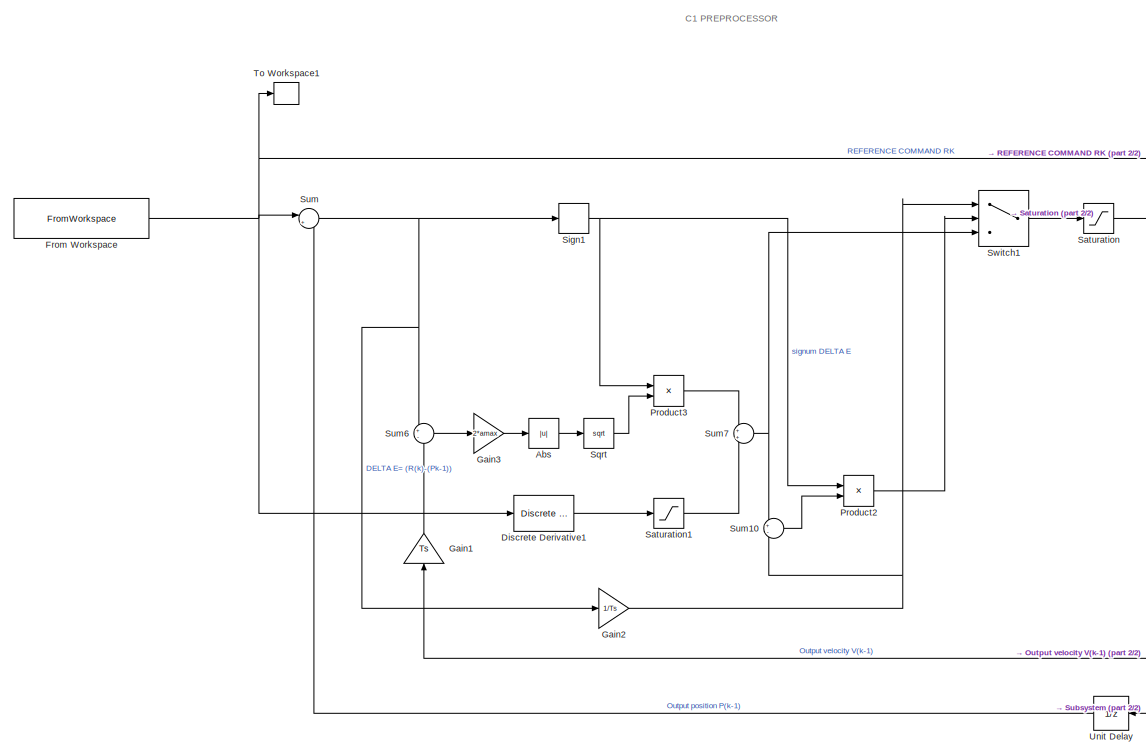
[diagram: root canvas - part 1/2, left side, full height]
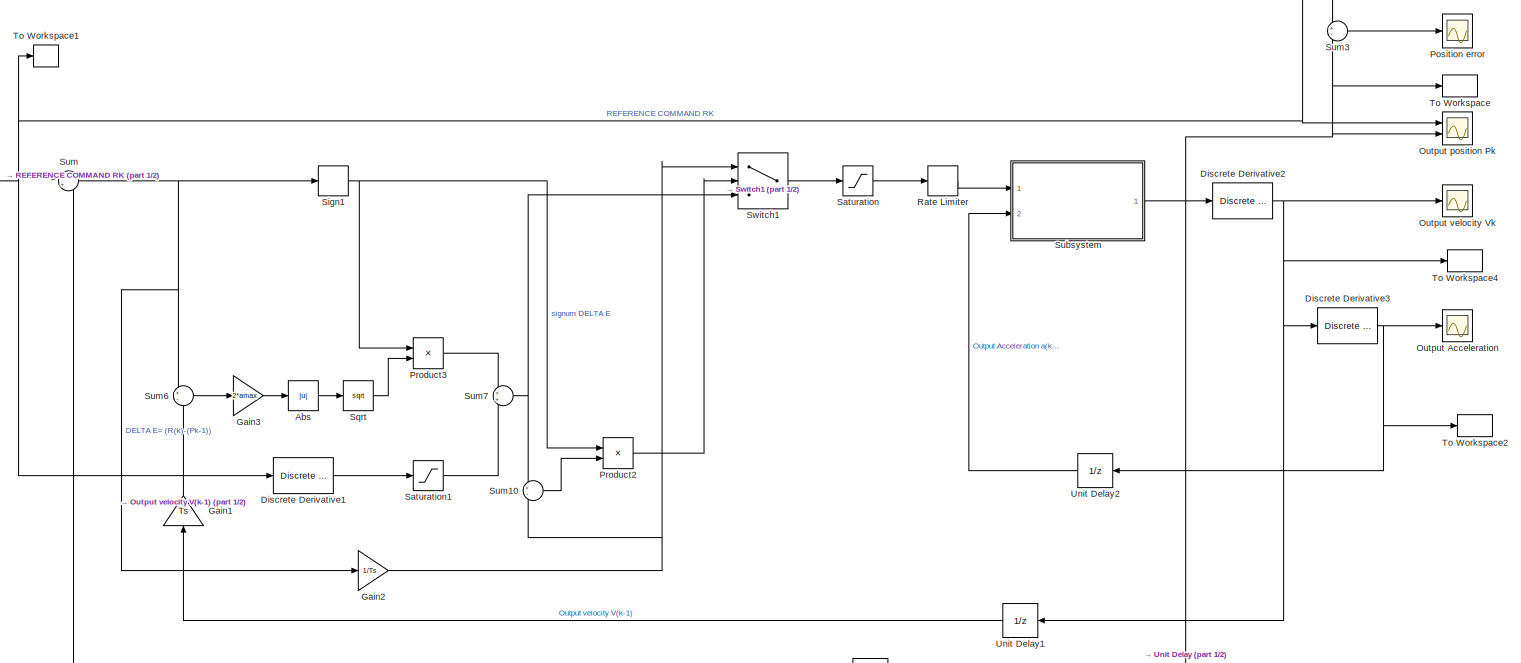
[diagram: root canvas - part 2/2, most of the canvas]
MODEL slx_3050f419aaf1
KIND model
CONFIG AbsTol = auto
CONFIG EnableMultiTasking = off
CONFIG FixedStep = Ts
CONFIG MaxStep = auto
CONFIG MinStep = auto
CONFIG RelTol = 1e-3
CONFIG SampleTimeConstraint = Unconstrained
CONFIG SolverName = FixedStepDiscrete
CONFIG StartTime = 0.0
CONFIG StopTime = 200
WORKSPACE source: mxarray member
WORKSPACE Ts = 0.002
WORKSPACE acoeff = 0.95
WORKSPACE amax = 0.1
WORKSPACE jcoeff = 0.1
WORKSPACE jmax = 1
WORKSPACE pf = 160
WORKSPACE reference_command = [0 0.002 0.004 0.006 0.008 0.01 0.012 0.014 0.016 0.018 0.02 0.022 ... (200002 elements, 100001x2)]
WORKSPACE v = 50
WORKSPACE vmax = 1.5
BLOCK [Abs] Abs
  SaturateOnIntegerOverflow = off
BLOCK [Reference] Discrete Derivative1  REF=simulink/Discrete/Discrete Derivative
  Ports = [1, 1]
  SourceBlock = simulink/Discrete/Discrete Derivative
  SourceProductBaseCode = SL
  SourceType = Discrete Derivative
BLOCK [Reference] Discrete Derivative2  REF=simulink/Discrete/Discrete Derivative
  Ports = [1, 1]
  SourceBlock = simulink/Discrete/Discrete Derivative
  SourceProductBaseCode = SL
  SourceType = Discrete Derivative
BLOCK [Reference] Discrete Derivative3  REF=simulink/Discrete/Discrete Derivative
  Ports = [1, 1]
  SourceBlock = simulink/Discrete/Discrete Derivative
  SourceProductBaseCode = SL
  SourceType = Discrete Derivative
BLOCK [FromWorkspace] From Workspace
  VariableName = reference_command
BLOCK [Gain] Gain1
  Gain = Ts
  NameLocation = right
BLOCK [Gain] Gain2
  Gain = 1/Ts
BLOCK [Gain] Gain3
  Gain = 2*amax
BLOCK [Scope] Output Acceleration
  Floating = off
  NumInputPorts = 1
  Ports = [1]
  ScopeSpecificationString = Simulink.scopes.TimeScopeBlockCfg('CurrentConfiguration', extmgr.ConfigurationSet(extmgr.Configuration('Core','General UI',true),extmgr.Configuration('Core','Source UI',true),extmgr.Configuration('Sources','WiredSimulink',true,'DataLoggingVariableName','ScopeData1'),extmgr.Configuration('Visuals','Time Domain',true,'SerializedDisplays',{struct('MinYLimReal','-0.13125','MaxYLimReal','0.13125','YLab...<+1479ch>
BLOCK [Scope] Output position Pk
  Floating = off
  NumInputPorts = 2
  Ports = [2]
  ScopeSpecificationString = Simulink.scopes.TimeScopeBlockCfg('CurrentConfiguration', extmgr.ConfigurationSet(extmgr.Configuration('Core','General UI',true),extmgr.Configuration('Core','Source UI',true),extmgr.Configuration('Sources','WiredSimulink',true,'DataLoggingMaxPoints','100'),extmgr.Configuration('Visuals','Time Domain',true,'TimeAxisLabels','All','PlotType','Line','SerializedDisplays',{struct('MinYLimReal','-21.0445...<+1779ch>
BLOCK [Scope] Output velocity Vk
  Floating = off
  NumInputPorts = 1
  Ports = [1]
  ScopeSpecificationString = Simulink.scopes.TimeScopeBlockCfg('CurrentConfiguration', extmgr.ConfigurationSet(extmgr.Configuration('Core','General UI',true),extmgr.Configuration('Core','Source UI',true),extmgr.Configuration('Sources','WiredSimulink',true,'DataLoggingVariableName','ScopeData1'),extmgr.Configuration('Visuals','Time Domain',true,'SerializedDisplays',{struct('MinYLimReal','-0.013899','MaxYLimReal','-0.013879','Y...<+1568ch>
BLOCK [Scope] Position error
  Floating = off
  NumInputPorts = 1
  Ports = [1]
  ScopeSpecificationString = Simulink.scopes.TimeScopeBlockCfg('CurrentConfiguration', extmgr.ConfigurationSet(extmgr.Configuration('Core','General UI',true),extmgr.Configuration('Core','Source UI',true),extmgr.Configuration('Sources','WiredSimulink',true,'DataLoggingMaxPoints','100','DataLoggingVariableName','ScopeData1'),extmgr.Configuration('Visuals','Time Domain',true,'TimeAxisLabels','All','PlotType','Line','SerializedDi...<+1782ch>
BLOCK [Product] Product2
  Ports = [2, 1]
BLOCK [Product] Product3
  Ports = [2, 1]
BLOCK [RateLimiter] Rate Limiter
  FallingSlewLimit = -amax
  RisingSlewLimit = amax
  SampleTimeMode = inherited
BLOCK [Saturate] Saturation
  LowerLimit = -vmax
  UpperLimit = vmax
BLOCK [Saturate] Saturation1
  LowerLimit = -vmax
  UpperLimit = vmax
BLOCK [Signum] Sign1
BLOCK [Sqrt] Sqrt
  NameLocation = top
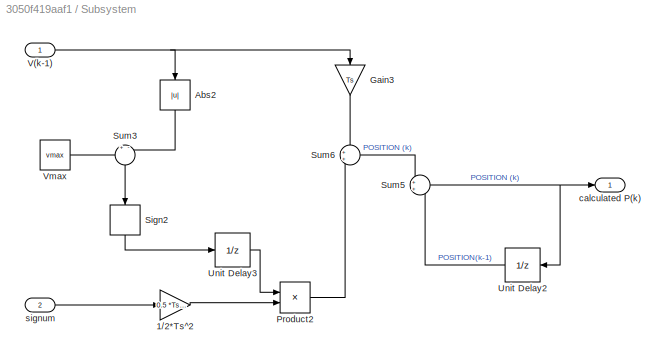
BLOCK [SubSystem] Subsystem
  Ports = [2, 1]
  RequestExecContextInheritance = off
BLOCK [Gain] Subsystem/1//2*Ts^2
  Gain = 0.5 *Ts^2
BLOCK [Abs] Subsystem/Abs2
  NameLocation = right
  SaturateOnIntegerOverflow = off
BLOCK [Gain] Subsystem/Gain3
  Gain = Ts
  NameLocation = left
BLOCK [Product] Subsystem/Product2
  Ports = [2, 1]
BLOCK [Signum] Subsystem/Sign2
  NameLocation = left
BLOCK [Sum] Subsystem/Sum3
  Inputs = +-
  NameLocation = left
  Ports = [2, 1]
BLOCK [Sum] Subsystem/Sum5
  Ports = [2, 1]
BLOCK [Sum] Subsystem/Sum6
  Ports = [2, 1]
BLOCK [UnitDelay] Subsystem/Unit Delay2
  HasFrameUpgradeWarning = on
  SampleTime = -1
BLOCK [UnitDelay] Subsystem/Unit Delay3
  HasFrameUpgradeWarning = on
  SampleTime = -1
BLOCK [Inport] Subsystem/V(k-1)
BLOCK [Constant] Subsystem/Vmax
  Value = vmax
BLOCK [Outport] Subsystem/calculated P(k)
BLOCK [Inport] Subsystem/signum
  Port = 2
BLOCK [Sum] Sum
  Inputs = |+-
  Ports = [2, 1]
BLOCK [Sum] Sum10
  Inputs = +-
  Ports = [2, 1]
BLOCK [Sum] Sum3
  Inputs = +-
  Ports = [2, 1]
BLOCK [Sum] Sum6
  Inputs = +-
  Ports = [2, 1]
BLOCK [Sum] Sum7
  Ports = [2, 1]
BLOCK [Switch] Switch1
  InputSameDT = off
  SaturateOnIntegerOverflow = off
BLOCK [ToWorkspace] To Workspace
  FixptAsFi = on
  MaxDataPoints = inf
  Ports = [1]
  SampleTime = -1
  VariableName = pos
BLOCK [ToWorkspace] To Workspace1
  FixptAsFi = on
  MaxDataPoints = inf
  Ports = [1]
  SampleTime = -1
  VariableName = p
BLOCK [ToWorkspace] To Workspace2
  FixptAsFi = on
  MaxDataPoints = inf
  Ports = [1]
  SampleTime = -1
  VariableName = acc
BLOCK [ToWorkspace] To Workspace4
  FixptAsFi = on
  MaxDataPoints = inf
  Ports = [1]
  SampleTime = -1
  VariableName = vel
BLOCK [UnitDelay] Unit Delay
  HasFrameUpgradeWarning = on
  SampleTime = -1
BLOCK [UnitDelay] Unit Delay1
  HasFrameUpgradeWarning = on
  SampleTime = -1
BLOCK [UnitDelay] Unit Delay2
  HasFrameUpgradeWarning = on
  SampleTime = -1
ANNOTATION (root): C1 PREPROCESSOR
LINE Abs:1 -> Sqrt:1
LINE Discrete Derivative1:1 -> Saturation1:1
NET Discrete Derivative2:1 -> Discrete Derivative3:1, Output velocity Vk:1, To Workspace4:1, Unit Delay1:1
NET Discrete Derivative3:1 -> Output Acceleration:1, To Workspace2:1, Unit Delay2:1
NET From Workspace:1 -> Discrete Derivative1:1, Output position Pk:1, Sum3:1, Sum:1, To Workspace1:1
LINE Gain1:1 -> Sum6:2
NET Gain2:1 -> Sum10:2, Switch1:1
LINE Gain3:1 -> Abs:1
LINE Product2:1 -> Switch1:2
LINE Product3:1 -> Sum7:1
LINE Rate Limiter:1 -> Subsystem:1
LINE Saturation1:1 -> Sum7:2
LINE Saturation:1 -> Rate Limiter:1
NET Sign1:1 -> Product2:1, Product3:1
LINE Sqrt:1 -> Product3:2
LINE Subsystem/1//2*Ts^2:1 -> Subsystem/Product2:2
LINE Subsystem/Abs2:1 -> Subsystem/Sum3:2
LINE Subsystem/Gain3:1 -> Subsystem/Sum6:1
LINE Subsystem/Product2:1 -> Subsystem/Sum6:2
LINE Subsystem/Sign2:1 -> Subsystem/Unit Delay3:1
LINE Subsystem/Sum3:1 -> Subsystem/Sign2:1
NET Subsystem/Sum5:1 -> Subsystem/Unit Delay2:1, Subsystem/calculated P(k):1
LINE Subsystem/Sum6:1 -> Subsystem/Sum5:1
LINE Subsystem/Unit Delay2:1 -> Subsystem/Sum5:2
LINE Subsystem/Unit Delay3:1 -> Subsystem/Product2:1
NET Subsystem/V(k-1):1 -> Subsystem/Abs2:1, Subsystem/Gain3:1
LINE Subsystem/Vmax:1 -> Subsystem/Sum3:1
LINE Subsystem/signum:1 -> Subsystem/1//2*Ts^2:1
NET Subsystem:1 -> Discrete Derivative2:1, Output position Pk:2, Sum3:2, To Workspace:1, Unit Delay:1
LINE Sum10:1 -> Product2:2
LINE Sum3:1 -> Position error:1
LINE Sum6:1 -> Gain3:1
NET Sum7:1 -> Sum10:1, Switch1:3
NET Sum:1 -> Gain2:1, Sign1:1, Sum6:1
LINE Switch1:1 -> Saturation:1
LINE Unit Delay1:1 -> Gain1:1
LINE Unit Delay2:1 -> Subsystem:2
LINE Unit Delay:1 -> Sum:2
note: NET lines group one-source signal fan-out (src -> all destinations, sorted); 1:1 wires keep LINE
